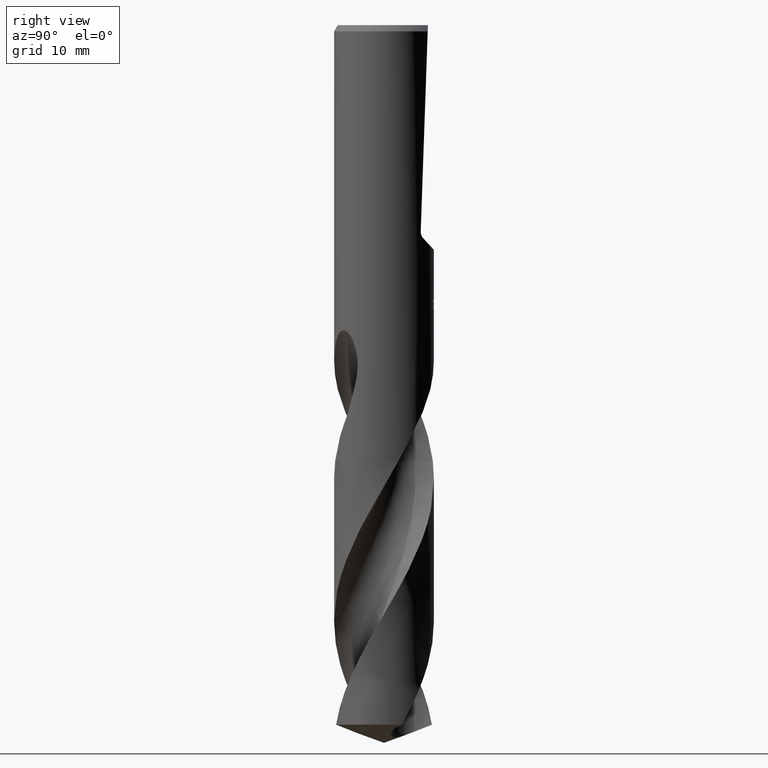
[diagram: clean part render]
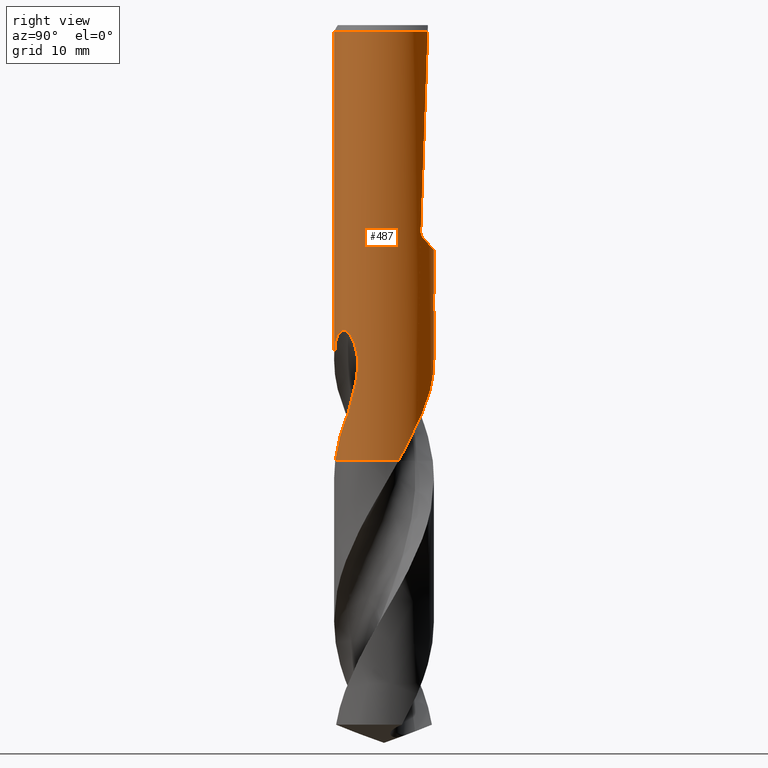
[diagram: same view with one face highlighted and labeled with its STEP entity id]
A machine part, right view. The second image highlights one B-rep face of the part: STEP entity #487.
In plain terms, the highlighted cylindrical surface (partial cylindrical patch) has radius 8 mm, axis along (-0, -0, 1).
Its self-contained STEP definition (entity closure, byte-faithful):
#285=EDGE_CURVE('',#467,#541,#801,.T.);
#287=VERTEX_POINT('',#803);
#305=VERTEX_POINT('',#823);
#307=EDGE_CURVE('',#609,#769,#825,.T.);
#317=EDGE_CURVE('',#585,#721,#837,.T.);
#343=EDGE_CURVE('',#287,#443,#866,.T.);
#367=VERTEX_POINT('',#892);
#399=VERTEX_POINT('',#928);
#411=VERTEX_POINT('',#942);
#413=EDGE_CURVE('',#511,#727,#944,.T.);
#419=VERTEX_POINT('',#951);
#425=EDGE_CURVE('',#541,#597,#958,.T.);
#427=EDGE_CURVE('',#667,#749,#960,.T.);
#429=EDGE_CURVE('',#585,#511,#962,.T.);
#437=EDGE_CURVE('',#597,#707,#970,.T.);
#443=VERTEX_POINT('',#976);
#453=EDGE_CURVE('',#399,#411,#989,.T.);
#457=EDGE_CURVE('',#667,#419,#993,.T.);
#465=EDGE_CURVE('',#367,#727,#1001,.T.);
#467=VERTEX_POINT('',#1003);
#479=EDGE_CURVE('',#707,#749,#1016,.T.);
#487=ADVANCED_FACE('',(#1025),#1026,.T.);
#497=EDGE_CURVE('',#411,#467,#1036,.T.);
#503=EDGE_CURVE('',#443,#305,#1042,.T.);
#509=EDGE_CURVE('',#419,#287,#1048,.T.);
#511=VERTEX_POINT('',#1050);
#541=VERTEX_POINT('',#1082);
#581=EDGE_CURVE('',#769,#721,#1124,.T.);
#585=VERTEX_POINT('',#1128);
#597=VERTEX_POINT('',#1142);
#609=VERTEX_POINT('',#1156);
#635=EDGE_CURVE('',#773,#609,#1184,.T.);
#663=EDGE_CURVE('',#367,#399,#1214,.T.);
#667=VERTEX_POINT('',#1218);
#707=VERTEX_POINT('',#1262);
#711=EDGE_CURVE('',#773,#305,#1266,.T.);
#721=VERTEX_POINT('',#1276);
#727=VERTEX_POINT('',#1284);
#749=VERTEX_POINT('',#1309);
#769=VERTEX_POINT('',#1329);
#773=VERTEX_POINT('',#1333);
#801=B_SPLINE_CURVE_WITH_KNOTS('',3,(#1354,#1355,#1356,#1357,#1358,#1359,#1360,#1361,#1362,#1363),.UNSPECIFIED.,.F.,.F.,(4,2,2,2,4),(7.9997820093283,8.30736264228193,8.61494327523556,8.92261732067862,9.23029136612168),.UNSPECIFIED.);
#803=CARTESIAN_POINT('',(5.42005422208492,5.88413224100712,-33.0452691504272));
#823=CARTESIAN_POINT('',(9.79685083057902E-016,-8.0,-1.0));
#825=B_SPLINE_CURVE_WITH_KNOTS('',3,(#1439,#1440,#1441,#1442),.UNSPECIFIED.,.F.,.F.,(4,4),(0.0,4.59775920815265),.UNSPECIFIED.);
#837=CIRCLE('',#1457,8.0);
#866=ELLIPSE('',#2569,229.229666782752,8.0);
#892=CARTESIAN_POINT('',(-7.24729156774638E-017,8.0,-46.0310253601033));
#928=CARTESIAN_POINT('',(0.29010312703583,7.99473828062458,-45.9998328990228));
#942=CARTESIAN_POINT('',(0.873560781758957,7.95216269706378,-44.3198931596091));
#944=B_SPLINE_CURVE_WITH_KNOTS('',3,(#3239,#3240,#3241,#3242,#3243,#3244,#3245,#3246,#3247,#3248,#3249,#3250,#3251,#3252,#3253,#3254,#3255,#3256,#3257,#3258,#3259,#3260,#3261,#3262,#3263,#3264,#3265,#3266,#3267,#3268),.UNSPECIFIED.,.F.,.F.,(4,2,2,2,2,2,2,2,2,2,2,2,2,2,4),(0.0,3.91954424095143,6.05970908034074,7.99815946126317,10.2501715956848,12.9553544624296,15.2999822357393,16.3624884509541,17.1390508177918,17.8739058790703,18.8061133157624,20.1699705893626,22.1088540741153,23.3776396662997,24.7110470743542),.UNSPECIFIED.);
#951=CARTESIAN_POINT('',(4.91387184738217,6.312991641647,-34.1923057212512));
#958=LINE('',#3286,#3287);
#960=LINE('',#3290,#3291);
#962=B_SPLINE_CURVE_WITH_KNOTS('',3,(#3294,#3295,#3296,#3297,#3298,#3299,#3300,#3301,#3302,#3303,#3304,#3305,#3306,#3307,#3308,#3309),.UNSPECIFIED.,.F.,.F.,(4,2,2,2,2,2,2,4),(0.0,2.25333247476214,3.95042721494044,4.56806299511876,5.68618909159448,6.69935746996907,7.46427562047689,8.26180331038344),.UNSPECIFIED.);
#970=B_SPLINE_CURVE_WITH_KNOTS('',3,(#3362,#3363,#3364,#3365,#3366,#3367,#3368,#3369,#3370,#3371),.UNSPECIFIED.,.F.,.F.,(4,2,2,2,4),(0.615348112106937,0.923022168160405,1.23069622421387,1.53827686765788,1.84585751110189),.UNSPECIFIED.);
#976=CARTESIAN_POINT('',(3.86723442861831,7.00317769831019,-1.0));
#989=ELLIPSE('',#3620,24.3839565869582,8.0);
#993=ELLIPSE('',#3637,11.730233485117,8.0);
#1001=LINE('',#3649,#3650);
#1003=CARTESIAN_POINT('',(0.873560781758956,7.95216269706378,-45.7587351791531));
#1016=B_SPLINE_CURVE_WITH_KNOTS('',3,(#3683,#3684,#3685,#3686,#3687,#3688,#3689,#3690,#3691,#3692,#3693,#3694,#3695,#3696,#3697,#3698,#3699,#3700,#3701,#3702,#3703,#3704,#3705,#3706,#3707,#3708,#3709),.UNSPECIFIED.,.F.,.F.,(4,2,3,2,2,2,2,2,2,2,2,2,4),(-0.5419285326464,-0.2709642663232,0.0,0.2709642663232,0.5419285326464,0.813116082096196,1.08430363154599,1.35512009221967,1.62593655289334,1.89686258809883,2.16778862330431,2.43871465850979,2.70964069371527),.UNSPECIFIED.);
#1025=FACE_OUTER_BOUND('',#3718,.T.);
#1026=CYLINDRICAL_SURFACE('',#3719,8.0);
#1036=LINE('',#3786,#3787);
#1042=CIRCLE('',#3798,8.0);
#1048=B_SPLINE_CURVE_WITH_KNOTS('',3,(#3900,#3901,#3902,#3903,#3904,#3905,#3906,#3907,#3908,#3909,#3910,#3911),.UNSPECIFIED.,.F.,.F.,(4,2,2,2,2,4),(17.7867979530988,18.2875784961417,18.7883590391846,19.136812825839,19.4852666124933,19.8337203991477),.UNSPECIFIED.);
#1050=CARTESIAN_POINT('',(5.09770954230643,6.16549733778857,-62.101));
#1082=CARTESIAN_POINT('',(1.33721006514658,7.88745011024924,-45.2901657003257));
#1124=B_SPLINE_CURVE_WITH_KNOTS('',3,(#4099,#4100,#4101,#4102,#4103,#4104,#4105,#4106,#4107,#4108),.UNSPECIFIED.,.F.,.F.,(4,2,2,2,4),(0.0,1.94659462805841,3.7242575981851,4.90871737093422,8.46510718605956),.UNSPECIFIED.);
#1128=CARTESIAN_POINT('',(7.65239522702509,2.33256238703354,-69.8));
#1142=CARTESIAN_POINT('',(1.33721006514658,7.88745011024924,-43.5150484364821));
#1156=CARTESIAN_POINT('',(6.50913730642338,-4.65092802848285,-57.7203581719634));
#1184=B_SPLINE_CURVE_WITH_KNOTS('',3,(#5287,#5288,#5289,#5290,#5291,#5292,#5293,#5294,#5295,#5296,#5297,#5298,#5299,#5300,#5301,#5302,#5303,#5304,#5305,#5306,#5307,#5308,#5309,#5310,#5311,#5312,#5313,#5314,#5315,#5316),.UNSPECIFIED.,.F.,.F.,(4,2,2,2,2,2,2,2,2,2,2,2,2,2,4),(0.0,3.91954424095142,6.05970908034064,7.99815946126296,10.2501715956835,12.9553544624273,15.2999822357362,16.3624884509507,17.1390508177882,17.8739058790664,18.8061133157581,20.1699705893577,22.1088540741095,23.3776396662932,24.7110470743471),.UNSPECIFIED.);
#1214=B_SPLINE_CURVE_WITH_KNOTS('',3,(#6173,#6174,#6175,#6176,#6177,#6178,#6179,#6180,#6181,#6182,#6183,#6184,#6185,#6186,#6187,#6188),.UNSPECIFIED.,.F.,.F.,(4,2,2,2,2,2,2,4),(5.84590460773513,6.15359942935952,6.46135491269572,6.76911039603191,7.0768658793681,7.3846213627043,7.69220202210762,7.99978268151095),.UNSPECIFIED.);
#1218=CARTESIAN_POINT('',(-9.79685083057902E-016,8.0,-36.001400698299));
#1262=CARTESIAN_POINT('',(0.799431726384364,7.95995659001041,-43.000000276873));
#1266=LINE('',#7030,#7031);
#1276=CARTESIAN_POINT('',(1.67984156178589,-7.82164511642511,-69.8));
#1284=CARTESIAN_POINT('',(-2.36704124183251E-012,8.0,-53.5971934870333));
#1309=CARTESIAN_POINT('',(-9.11185746623598E-016,8.0,-44.0232688117743));
#1329=CARTESIAN_POINT('',(5.56061874022376,-5.75147974228131,-62.101));
#1333=CARTESIAN_POINT('',(2.37148213393101E-012,-8.0,-53.5971934870333));
#1354=CARTESIAN_POINT('',(0.595603069362038,7.97779775274897,-45.9070059828647));
#1355=CARTESIAN_POINT('',(0.695875607770284,7.97031164778485,-45.8654168666682));
#1356=CARTESIAN_POINT('',(0.791947270975792,7.9612059989663,-45.8136684579007));
#1357=CARTESIAN_POINT('',(0.969538931061313,7.94153484530432,-45.6941933160018));
#1358=CARTESIAN_POINT('',(1.05105571843074,7.93098927070892,-45.626458531696));
#1359=CARTESIAN_POINT('',(1.19535909455105,7.91052645501965,-45.4821754000808));
#1360=CARTESIAN_POINT('',(1.26311675770878,7.89988652901278,-45.400648670066));
#1361=CARTESIAN_POINT('',(1.38262798630879,7.87984841012683,-45.2230407534163));
#1362=CARTESIAN_POINT('',(1.43438985281126,7.87047122879432,-45.1269627826753));
#1363=CARTESIAN_POINT('',(1.47599102722323,7.86266179404637,-45.0266816017901));
#1439=CARTESIAN_POINT('',(6.509137306476,-4.65092802840921,-57.7203581719924));
#1440=CARTESIAN_POINT('',(6.2512239002312,-5.01188690891086,-59.1873313971267));
#1441=CARTESIAN_POINT('',(5.94036930869817,-5.38433107406192,-60.6630345193402));
#1442=CARTESIAN_POINT('',(5.56061874022376,-5.75147974228131,-62.101));
#1457=AXIS2_PLACEMENT_3D('',#7596,#7597,#7598);
#2569=AXIS2_PLACEMENT_3D('',#7626,#7627,#7628);
#3239=CARTESIAN_POINT('',(5.09770954230644,6.16549733778857,-62.101));
#3240=CARTESIAN_POINT('',(4.57000121066715,6.60181312066377,-60.9882856438337));
#3241=CARTESIAN_POINT('',(3.96325653774762,6.98966747725262,-59.9508763489814));
#3242=CARTESIAN_POINT('',(2.905274881206,7.4650645199659,-58.2178136375714));
#3243=CARTESIAN_POINT('',(2.52456311001175,7.60181838569851,-57.6080635291304));
#3244=CARTESIAN_POINT('',(1.78755329214098,7.80620169836064,-56.4277458020843));
#3245=CARTESIAN_POINT('',(1.43454593775353,7.87840982880335,-55.8626797279779));
#3246=CARTESIAN_POINT('',(0.670433801275974,7.98262387869063,-54.6448127407675));
#3247=CARTESIAN_POINT('',(0.25294635185075,8.00709039794079,-53.982478945747));
#3248=CARTESIAN_POINT('',(-0.67418675080459,7.98758819232414,-52.5655280339289));
#3249=CARTESIAN_POINT('',(-1.22388315858029,7.92726904211625,-51.7592673906364));
#3250=CARTESIAN_POINT('',(-2.28390148424541,7.68367191702514,-50.4297994345278));
#3251=CARTESIAN_POINT('',(-2.87036695402116,7.49808183000188,-49.7810714265145));
#3252=CARTESIAN_POINT('',(-3.75797698464402,7.0690963509036,-49.1736025330166));
#3253=CARTESIAN_POINT('',(-4.05178203890439,6.90714432219038,-49.0234725465385));
#3254=CARTESIAN_POINT('',(-4.56659598985595,6.57368115412335,-48.9081459666752));
#3255=CARTESIAN_POINT('',(-4.77775007830215,6.42181954589211,-48.9059926432508));
#3256=CARTESIAN_POINT('',(-5.17103595533389,6.10901636959189,-49.0069278521022));
#3257=CARTESIAN_POINT('',(-5.34303956581484,5.95793869787731,-49.1015634677296));
#3258=CARTESIAN_POINT('',(-5.69306499814542,5.62686381410359,-49.3976673291504));
#3259=CARTESIAN_POINT('',(-5.85500259906836,5.45529252455027,-49.6162867121499));
#3260=CARTESIAN_POINT('',(-6.18670315696017,5.08065410896478,-50.2149344117631));
#3261=CARTESIAN_POINT('',(-6.34524941673478,4.87663673139449,-50.6589540681789));
#3262=CARTESIAN_POINT('',(-6.6433897673663,4.46697251891947,-51.9012717386966));
#3263=CARTESIAN_POINT('',(-6.75117437430646,4.29247537824051,-52.7860337907772));
#3264=CARTESIAN_POINT('',(-6.8045231221369,4.20714269394708,-54.4235084076647));
#3265=CARTESIAN_POINT('',(-6.79197933964311,4.22794141988675,-55.0756303069478));
#3266=CARTESIAN_POINT('',(-6.70338101954222,4.3671307468685,-56.3991120292459));
#3267=CARTESIAN_POINT('',(-6.62427322358737,4.48979126413566,-57.0654905030166));
#3268=CARTESIAN_POINT('',(-6.50913730642339,4.65092802848285,-57.7203581719634));
#3286=CARTESIAN_POINT('',(1.33721006514658,7.88745011024924,-44.4026070684039));
#3287=VECTOR('',#7761,1.0);
#3290=CARTESIAN_POINT('',(-9.79685083057902E-016,8.0,-58.9));
#3291=VECTOR('',#7762,1.0);
#3294=CARTESIAN_POINT('',(7.65239522702511,2.33256238703356,-69.7999999999999));
#3295=CARTESIAN_POINT('',(7.54266333457677,2.69255782153596,-69.1499771771466));
#3296=CARTESIAN_POINT('',(7.40793108813815,3.04414714132233,-68.5115504272598));
#3297=CARTESIAN_POINT('',(7.12589974298531,3.6473812961987,-67.3838132400833));
#3298=CARTESIAN_POINT('',(6.99312149560165,3.895487861752,-66.915556223359));
#3299=CARTESIAN_POINT('',(6.79548576092186,4.22276928196483,-66.2467144223624));
#3300=CARTESIAN_POINT('',(6.74181931010506,4.30786445877977,-66.0677388134281));
#3301=CARTESIAN_POINT('',(6.58894198248219,4.54070910144141,-65.5616314261213));
#3302=CARTESIAN_POINT('',(6.48986118523022,4.6802061008799,-65.235104607873));
#3303=CARTESIAN_POINT('',(6.31780534553856,4.90957374102945,-64.6893956490076));
#3304=CARTESIAN_POINT('',(6.2091560703752,5.05066353675584,-64.3352712076329));
#3305=CARTESIAN_POINT('',(5.92103806218354,5.38303963524832,-63.6105914750813));
#3306=CARTESIAN_POINT('',(5.78067434251894,5.53451154729383,-63.3020657660438));
#3307=CARTESIAN_POINT('',(5.46582903662167,5.8460089675081,-62.6929487536542));
#3308=CARTESIAN_POINT('',(5.29013181901398,6.00640021676439,-62.3931742720466));
#3309=CARTESIAN_POINT('',(5.09770954230643,6.16549733778857,-62.101));
#3362=CARTESIAN_POINT('',(1.47599103529286,7.86266179253153,-43.7785325491198));
#3363=CARTESIAN_POINT('',(1.43438985944284,7.87047122759364,-43.6782513647829));
#3364=CARTESIAN_POINT('',(1.38262799115151,7.87984840929324,-43.5821733907361));
#3365=CARTESIAN_POINT('',(1.26311675841946,7.89988652891524,-43.4045654679751));
#3366=CARTESIAN_POINT('',(1.19535909291818,7.9105264552896,-43.323038735155));
#3367=CARTESIAN_POINT('',(1.05105571182799,7.93098927160683,-43.1787555986019));
#3368=CARTESIAN_POINT('',(0.96953892166584,7.94153484648562,-43.1110208119877));
#3369=CARTESIAN_POINT('',(0.791947255495983,7.96120600054034,-42.9915456660162));
#3370=CARTESIAN_POINT('',(0.695875588998913,7.97031164946692,-42.9397972554843));
#3371=CARTESIAN_POINT('',(0.595603047157031,7.97779775440674,-42.8982081378705));
#3620=AXIS2_PLACEMENT_3D('',#7784,#7785,#7786);
#3637=AXIS2_PLACEMENT_3D('',#7787,#7788,#7789);
#3649=CARTESIAN_POINT('',(-9.79685083057902E-016,8.0,-58.9));
#3650=VECTOR('',#7794,1.0);
#3683=CARTESIAN_POINT('',(0.664954599443552,7.97231681386778,-42.8134280485152));
#3684=CARTESIAN_POINT('',(0.728697309144575,7.96700016514617,-42.8771976298052));
#3685=CARTESIAN_POINT('',(0.783984970005959,7.96157817669746,-42.9579676288293));
#3686=CARTESIAN_POINT('',(0.857338729083105,7.95401344016708,-43.1350264032587));
#3687=CARTESIAN_POINT('',(0.875400981188567,7.9519603320272,-43.2313205904791));
#3688=CARTESIAN_POINT('',(0.875400981188567,7.9519603320272,-43.3216420125868));
#3689=CARTESIAN_POINT('',(0.875400981188567,7.9519603320272,-43.4119634346945));
#3690=CARTESIAN_POINT('',(0.857338729083105,7.95401344016708,-43.5082576219149));
#3691=CARTESIAN_POINT('',(0.783984970005959,7.96157817669746,-43.6853163963443));
#3692=CARTESIAN_POINT('',(0.728697309144575,7.96700016514617,-43.7660863953684));
#3693=CARTESIAN_POINT('',(0.601159363733413,7.97763784367611,-43.8936781061006));
#3694=CARTESIAN_POINT('',(0.520362377010846,7.9835511616299,-43.9490134763627));
#3695=CARTESIAN_POINT('',(0.343238271730281,7.99312539889087,-44.0224346019683));
#3696=CARTESIAN_POINT('',(0.246904936469423,7.99669990446128,-44.0405166027747));
#3697=CARTESIAN_POINT('',(0.0662715181116066,8.00023481827847,-44.0405166027747));
#3698=CARTESIAN_POINT('',(-0.0300046983202698,8.00043385807034,-44.0224788314126));
#3699=CARTESIAN_POINT('',(-0.207097636225057,7.99780924806332,-43.9491319808916));
#3700=CARTESIAN_POINT('',(-0.287916228308942,7.99507247117758,-43.8938243353674));
#3701=CARTESIAN_POINT('',(-0.415561608099308,7.98945501431132,-43.7662134499861));
#3702=CARTESIAN_POINT('',(-0.47089751346449,7.98621359896913,-43.6853869033816));
#3703=CARTESIAN_POINT('',(-0.544291654106699,7.9815473885346,-43.5082570304582));
#3704=CARTESIAN_POINT('',(-0.562348199187247,7.98021080566615,-43.4119506909886));
#3705=CARTESIAN_POINT('',(-0.562348199187247,7.98021080566615,-43.231333334185));
#3706=CARTESIAN_POINT('',(-0.544291654106699,7.9815473885346,-43.1350269947154));
#3707=CARTESIAN_POINT('',(-0.47089751346449,7.98621359896913,-42.9578971217919));
#3708=CARTESIAN_POINT('',(-0.415561608099308,7.98945501431132,-42.8770705751875));
#3709=CARTESIAN_POINT('',(-0.351726009227227,7.99226431084665,-42.8132522270084));
#3718=EDGE_LOOP('',(#7816,#7817,#7818,#7819,#7820,#7821,#7822,#7823,#7824,#7825,#7826,#7827,#7828,#7829,#7830,#7831,#7832,#7833,#7834,#7835));
#3719=AXIS2_PLACEMENT_3D('',#7836,#7837,#7838);
#3786=CARTESIAN_POINT('',(0.873560781758957,7.95216269706378,-45.0393141693811));
#3787=VECTOR('',#7839,1.0);
#3798=AXIS2_PLACEMENT_3D('',#7840,#7841,#7842);
#3900=CARTESIAN_POINT('',(4.58994309471534,6.55228375356829,-34.4024437933004));
#3901=CARTESIAN_POINT('',(4.71642436957527,6.46368230161835,-34.3390652298987));
#3902=CARTESIAN_POINT('',(4.84687908322376,6.36625962205645,-34.2551300471883));
#3903=CARTESIAN_POINT('',(5.07690479117988,6.18437835432267,-34.04577763915));
#3904=CARTESIAN_POINT('',(5.17638318245413,6.10037412513053,-33.9198644786463));
#3905=CARTESIAN_POINT('',(5.30114916039924,5.9918628749384,-33.6900994342353));
#3906=CARTESIAN_POINT('',(5.34644088115886,5.95123615939613,-33.5785264413443));
#3907=CARTESIAN_POINT('',(5.40645062228862,5.8967731381648,-33.3421390953525));
#3908=CARTESIAN_POINT('',(5.42111216212624,5.88315756423767,-33.2172596073693));
#3909=CARTESIAN_POINT('',(5.42111216212624,5.88315756423767,-32.984957082933));
#3910=CARTESIAN_POINT('',(5.40645062228862,5.8967731381648,-32.8600775949498));
#3911=CARTESIAN_POINT('',(5.37644575172364,5.92400464878049,-32.741883921954));
#4099=CARTESIAN_POINT('',(5.56061874022376,-5.75147974228131,-62.101));
#4100=CARTESIAN_POINT('',(5.33828710175591,-5.96643337696431,-62.6714289656079));
#4101=CARTESIAN_POINT('',(5.10081676762357,-6.17205471333474,-63.2350998071775));
#4102=CARTESIAN_POINT('',(4.58926248386967,-6.55992125503458,-64.329967700516));
#4103=CARTESIAN_POINT('',(4.33770380709637,-6.72977387596028,-64.8287281514521));
#4104=CARTESIAN_POINT('',(3.87119612805383,-7.00433378292312,-65.7518919462418));
#4105=CARTESIAN_POINT('',(3.68185186709193,-7.10557552933068,-66.123038416812));
#4106=CARTESIAN_POINT('',(2.91585659492809,-7.47700484403878,-67.5966462843236));
#4107=CARTESIAN_POINT('',(2.30755101243656,-7.68683301382608,-68.6952592878727));
#4108=CARTESIAN_POINT('',(1.67984156178589,-7.82164511642512,-69.8));
#5287=CARTESIAN_POINT('',(-5.09770954230643,-6.16549733778857,-62.101));
#5288=CARTESIAN_POINT('',(-4.57000121066715,-6.60181312066377,-60.9882856438337));
#5289=CARTESIAN_POINT('',(-3.96325653774763,-6.98966747725262,-59.9508763489814));
#5290=CARTESIAN_POINT('',(-2.90527488120601,-7.46506451996589,-58.2178136375714));
#5291=CARTESIAN_POINT('',(-2.52456311001176,-7.6018183856985,-57.6080635291304));
#5292=CARTESIAN_POINT('',(-1.78755329214098,-7.80620169836064,-56.4277458020843));
#5293=CARTESIAN_POINT('',(-1.43454593775353,-7.87840982880335,-55.8626797279779));
#5294=CARTESIAN_POINT('',(-0.670433801276163,-7.9826238786906,-54.6448127407678));
#5295=CARTESIAN_POINT('',(-0.252946351850833,-8.00709039794081,-53.9824789457471));
#5296=CARTESIAN_POINT('',(0.674186750804768,-7.98758819232415,-52.5655280339287));
#5297=CARTESIAN_POINT('',(1.22388315858033,-7.92726904211622,-51.7592673906364));
#5298=CARTESIAN_POINT('',(2.28390148424535,-7.68367191702514,-50.4297994345279));
#5299=CARTESIAN_POINT('',(2.87036695402115,-7.49808183000189,-49.7810714265145));
#5300=CARTESIAN_POINT('',(3.75797698464406,-7.06909635090358,-49.1736025330166));
#5301=CARTESIAN_POINT('',(4.05178203890441,-6.90714432219037,-49.0234725465386));
#5302=CARTESIAN_POINT('',(4.56659598985591,-6.57368115412337,-48.9081459666753));
#5303=CARTESIAN_POINT('',(4.77775007830214,-6.42181954589212,-48.9059926432508));
#5304=CARTESIAN_POINT('',(5.17103595533388,-6.10901636959189,-49.0069278521022));
#5305=CARTESIAN_POINT('',(5.34303956581484,-5.95793869787731,-49.1015634677296));
#5306=CARTESIAN_POINT('',(5.69306499814542,-5.62686381410358,-49.3976673291504));
#5307=CARTESIAN_POINT('',(5.85500259906836,-5.45529252455027,-49.6162867121499));
#5308=CARTESIAN_POINT('',(6.18670315696016,-5.08065410896479,-50.2149344117631));
#5309=CARTESIAN_POINT('',(6.34524941673477,-4.87663673139449,-50.6589540681789));
#5310=CARTESIAN_POINT('',(6.6433897673663,-4.46697251891947,-51.9012717386966));
#5311=CARTESIAN_POINT('',(6.75117437430646,-4.29247537824051,-52.7860337907772));
#5312=CARTESIAN_POINT('',(6.8045231221369,-4.20714269394708,-54.4235084076647));
#5313=CARTESIAN_POINT('',(6.79197933964311,-4.22794141988675,-55.0756303069478));
#5314=CARTESIAN_POINT('',(6.70338101954222,-4.3671307468685,-56.3991120292459));
#5315=CARTESIAN_POINT('',(6.62427322358737,-4.48979126413565,-57.0654905030166));
#5316=CARTESIAN_POINT('',(6.50913730642338,-4.65092802848284,-57.7203581719634));
#6173=CARTESIAN_POINT('',(-1.37965989409101,7.88013569531876,-45.3117516854175));
#6174=CARTESIAN_POINT('',(-1.3199289256702,7.89059343674534,-45.4005322669916));
#6175=CARTESIAN_POINT('',(-1.25220482221876,7.90172765643501,-45.4820341223787));
#6176=CARTESIAN_POINT('',(-1.107952172922,7.92324182089716,-45.6263077447315));
#6177=CARTESIAN_POINT('',(-1.02644372997692,7.93438131532357,-45.694054819207));
#6178=CARTESIAN_POINT('',(-0.848862462231446,7.95533947157086,-45.8135583581366));
#6179=CARTESIAN_POINT('',(-0.752792760365746,7.96513819479128,-45.8653229590247));
#6180=CARTESIAN_POINT('',(-0.552233007873722,7.9815513596031,-45.9485362190328));
#6181=CARTESIAN_POINT('',(-0.447578035759424,7.98816541907638,-45.9800508802037));
#6182=CARTESIAN_POINT('',(-0.236935963609582,7.99718539298489,-46.0214239066938));
#6183=CARTESIAN_POINT('',(-0.130946685762249,7.99958603183741,-46.0312723335086));
#6184=CARTESIAN_POINT('',(0.074164072792245,8.00031320966596,-46.0312723335086));
#6185=CARTESIAN_POINT('',(0.180109755406485,7.99866619075415,-46.0214348948015));
#6186=CARTESIAN_POINT('',(0.390692067401577,7.99114885755329,-45.9800916357112));
#6187=CARTESIAN_POINT('',(0.495330794510019,7.98528384147368,-45.9485955375336));
#6188=CARTESIAN_POINT('',(0.595603341302621,7.97779773244654,-45.9070064177945));
#7030=CARTESIAN_POINT('',(9.79685083057902E-016,-8.0,-58.9));
#7031=VECTOR('',#8004,1.0);
#7596=CARTESIAN_POINT('',(0.0,0.0,-69.8));
#7597=DIRECTION('',(0.0,0.0,-1.0));
#7598=DIRECTION('',(0.0,1.0,0.0));
#7626=CARTESIAN_POINT('',(0.0,0.0,-201.544770354078));
#7627=DIRECTION('',(0.0,-0.999390827019096,0.0348994967025007));
#7628=DIRECTION('',(0.0,0.0348994967025007,0.999390827019096));
#7761=DIRECTION('',(-0.0,-0.0,1.0));
#7762=DIRECTION('',(0.0,0.0,-1.0));
#7784=CARTESIAN_POINT('',(0.0,0.0,-46.8351219173269));
#7785=DIRECTION('',(0.944648353914092,0.0,-0.328084573619969));
#7786=DIRECTION('',(0.328084573619968,-0.0,0.944648353914092));
#7787=CARTESIAN_POINT('',(0.0,0.0,-27.4224510181016));
#7788=DIRECTION('',(0.0,-0.73135370161917,-0.681998360062499));
#7789=DIRECTION('',(0.0,0.681998360062499,-0.73135370161917));
#7794=DIRECTION('',(0.0,0.0,-1.0));
#7816=ORIENTED_EDGE('',*,*,#427,.F.);
#7817=ORIENTED_EDGE('',*,*,#457,.T.);
#7818=ORIENTED_EDGE('',*,*,#509,.T.);
#7819=ORIENTED_EDGE('',*,*,#343,.T.);
#7820=ORIENTED_EDGE('',*,*,#503,.T.);
#7821=ORIENTED_EDGE('',*,*,#711,.F.);
#7822=ORIENTED_EDGE('',*,*,#635,.T.);
#7823=ORIENTED_EDGE('',*,*,#307,.T.);
#7824=ORIENTED_EDGE('',*,*,#581,.T.);
#7825=ORIENTED_EDGE('',*,*,#317,.F.);
#7826=ORIENTED_EDGE('',*,*,#429,.T.);
#7827=ORIENTED_EDGE('',*,*,#413,.T.);
#7828=ORIENTED_EDGE('',*,*,#465,.F.);
#7829=ORIENTED_EDGE('',*,*,#663,.T.);
#7830=ORIENTED_EDGE('',*,*,#453,.T.);
#7831=ORIENTED_EDGE('',*,*,#497,.T.);
#7832=ORIENTED_EDGE('',*,*,#285,.T.);
#7833=ORIENTED_EDGE('',*,*,#425,.T.);
#7834=ORIENTED_EDGE('',*,*,#437,.T.);
#7835=ORIENTED_EDGE('',*,*,#479,.T.);
#7836=CARTESIAN_POINT('',(0.0,0.0,-58.9));
#7837=DIRECTION('',(-0.0,-0.0,1.0));
#7838=DIRECTION('',(0.0,1.0,0.0));
#7839=DIRECTION('',(0.0,0.0,-1.0));
#7840=CARTESIAN_POINT('',(0.0,0.0,-1.0));
#7841=DIRECTION('',(0.0,0.0,-1.0));
#7842=DIRECTION('',(0.0,1.0,0.0));
#8004=DIRECTION('',(-0.0,-0.0,1.0));